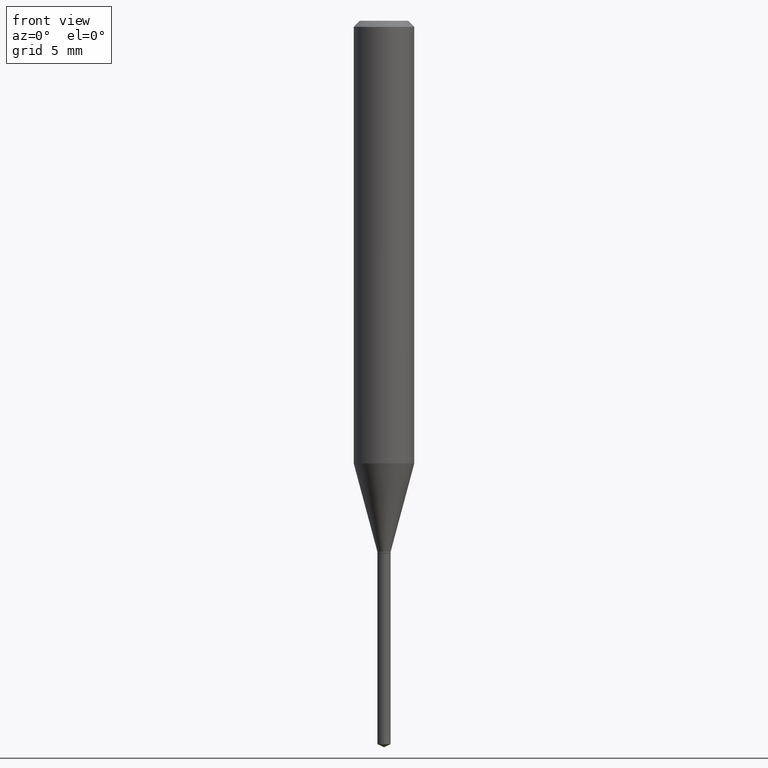
[diagram: clean part render]
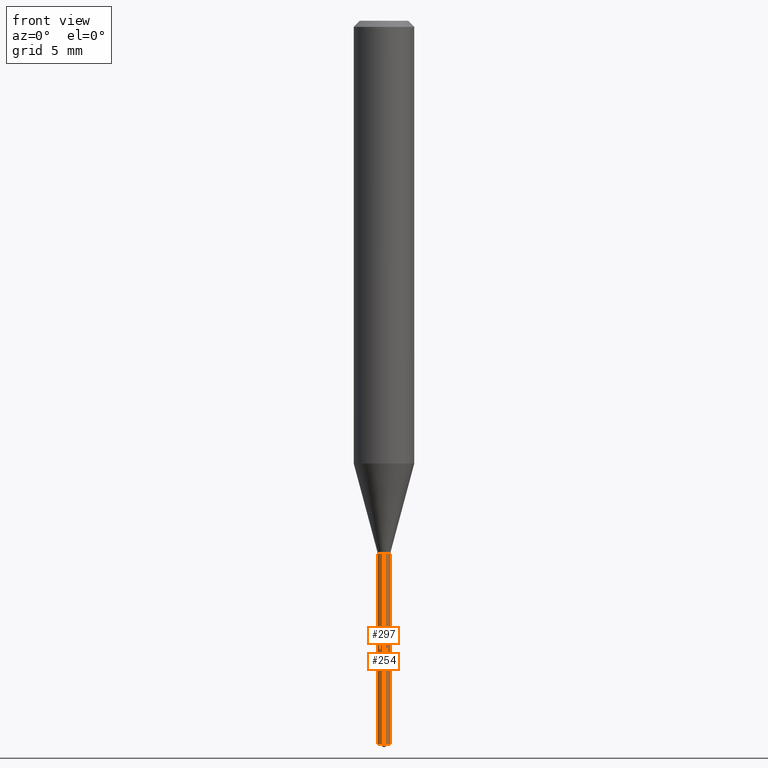
[diagram: same view with one multi-face feature highlighted, each face labeled with its STEP entity id]
A machine part, front view. The highlighted faces form ONE feature: a constant-radius fillet chain: 2 tangent blend faces with common blend radius 0.3505 mm. The faces share edges in the B-rep.
Their STEP definitions:
[1] entity #297 (Cylinder):
#15 = CARTESIAN_POINT ( 'NONE',  ( 2.690015686803650369E-29, -3.840629472727460101E-15, -1.100000000000000089 ) ) ;
#30 = VERTEX_POINT ( 'NONE', #400 ) ;
#85 = CARTESIAN_POINT ( 'NONE',  ( 9.805489753492071922E-17, 0.01379999999999615909, -1.100000000000000089 ) ) ;
#86 = DIRECTION ( 'NONE',  ( -2.445399690415121530E-29, 3.491580316559632610E-15, 1.000000000000000000 ) ) ;
#102 = CIRCLE ( 'NONE', #450, 0.01379999999999999977 ) ;
#112 = CARTESIAN_POINT ( 'NONE',  ( -9.636488495204356536E-17, -0.01380000000000384218, -1.100000000000000089 ) ) ;
#120 = FACE_OUTER_BOUND ( 'NONE', #225, .T. ) ;
#124 = LINE ( 'NONE', #85, #408 ) ;
#129 = DIRECTION ( 'NONE',  ( -6.982962677686265922E-15, -1.000000000000000000, 0.000000000000000000 ) ) ;
#145 = EDGE_CURVE ( 'NONE', #251, #30, #102, .T. ) ;
#146 = VECTOR ( 'NONE', #418, 39.37007874015748143 ) ;
#180 = AXIS2_PLACEMENT_3D ( 'NONE', #361, #86, #321 ) ;
#219 = EDGE_CURVE ( 'NONE', #30, #487, #236, .T. ) ;
#221 = VERTEX_POINT ( 'NONE', #386 ) ;
#225 = EDGE_LOOP ( 'NONE', ( #294, #237, #425, #308 ) ) ;
#235 = AXIS2_PLACEMENT_3D ( 'NONE', #15, #319, #129 ) ;
#236 = LINE ( 'NONE', #112, #146 ) ;
#237 = ORIENTED_EDGE ( 'NONE', *, *, #145, .T. ) ;
#240 = CARTESIAN_POINT ( 'NONE',  ( 3.652439304249811450E-29, -5.214793120509997697E-15, -1.493564954317461169 ) ) ;
#242 = EDGE_CURVE ( 'NONE', #221, #487, #468, .T. ) ;
#251 = VERTEX_POINT ( 'NONE', #286 ) ;
#286 = CARTESIAN_POINT ( 'NONE',  ( 9.805489753493030881E-17, 0.01379999999999478345, -1.493564954317461169 ) ) ;
#294 = ORIENTED_EDGE ( 'NONE', *, *, #314, .F. ) ;
#297 = ADVANCED_FACE ( 'NONE', ( #120 ), #315, .T. ) ;
#308 = ORIENTED_EDGE ( 'NONE', *, *, #242, .F. ) ;
#314 = EDGE_CURVE ( 'NONE', #251, #221, #124, .T. ) ;
#315 = CYLINDRICAL_SURFACE ( 'NONE', #235, 0.01379999999999999977 ) ;
#317 = DIRECTION ( 'NONE',  ( -2.445399690415121810E-29, 3.491580316559632610E-15, 1.000000000000000000 ) ) ;
#319 = DIRECTION ( 'NONE',  ( -2.445399690415121530E-29, 3.491580316559632610E-15, 1.000000000000000000 ) ) ;
#321 = DIRECTION ( 'NONE',  ( -6.982962677686265922E-15, -1.000000000000000000, 0.000000000000000000 ) ) ;
#361 = CARTESIAN_POINT ( 'NONE',  ( 2.690015686803650369E-29, -3.840629472727460101E-15, -1.100000000000000089 ) ) ;
#382 = CARTESIAN_POINT ( 'NONE',  ( -9.636488495204356536E-17, -0.01380000000000384218, -1.100000000000000089 ) ) ;
#383 = DIRECTION ( 'NONE',  ( -2.445399690415121530E-29, 3.491580316559632610E-15, 1.000000000000000000 ) ) ;
#386 = CARTESIAN_POINT ( 'NONE',  ( 9.805489753493040742E-17, 0.01379999999999615909, -1.100000000000000089 ) ) ;
#400 = CARTESIAN_POINT ( 'NONE',  ( -9.636488495203393879E-17, -0.01380000000000521435, -1.493564954317461169 ) ) ;
#408 = VECTOR ( 'NONE', #317, 39.37007874015748143 ) ;
#418 = DIRECTION ( 'NONE',  ( -2.445399690415121810E-29, 3.491580316559632610E-15, 1.000000000000000000 ) ) ;
#425 = ORIENTED_EDGE ( 'NONE', *, *, #219, .T. ) ;
#450 = AXIS2_PLACEMENT_3D ( 'NONE', #240, #383, #456 ) ;
#456 = DIRECTION ( 'NONE',  ( -6.982962677686265922E-15, -1.000000000000000000, 0.000000000000000000 ) ) ;
#468 = CIRCLE ( 'NONE', #180, 0.01379999999999999977 ) ;
#487 = VERTEX_POINT ( 'NONE', #382 ) ;
[2] entity #254 (Cylinder):
#2 = EDGE_LOOP ( 'NONE', ( #470, #480, #7, #56 ) ) ;
#7 = ORIENTED_EDGE ( 'NONE', *, *, #40, .F. ) ;
#16 = DIRECTION ( 'NONE',  ( -2.445399690415121530E-29, 3.491580316559632610E-15, 1.000000000000000000 ) ) ;
#30 = VERTEX_POINT ( 'NONE', #400 ) ;
#40 = EDGE_CURVE ( 'NONE', #487, #221, #107, .T. ) ;
#56 = ORIENTED_EDGE ( 'NONE', *, *, #219, .F. ) ;
#59 = CYLINDRICAL_SURFACE ( 'NONE', #88, 0.01379999999999999977 ) ;
#72 = AXIS2_PLACEMENT_3D ( 'NONE', #248, #16, #261 ) ;
#85 = CARTESIAN_POINT ( 'NONE',  ( 9.805489753492071922E-17, 0.01379999999999615909, -1.100000000000000089 ) ) ;
#88 = AXIS2_PLACEMENT_3D ( 'NONE', #204, #358, #212 ) ;
#107 = CIRCLE ( 'NONE', #72, 0.01379999999999999977 ) ;
#112 = CARTESIAN_POINT ( 'NONE',  ( -9.636488495204356536E-17, -0.01380000000000384218, -1.100000000000000089 ) ) ;
#124 = LINE ( 'NONE', #85, #408 ) ;
#138 = DIRECTION ( 'NONE',  ( -2.445399690415121530E-29, 3.491580316559632610E-15, 1.000000000000000000 ) ) ;
#146 = VECTOR ( 'NONE', #418, 39.37007874015748143 ) ;
#203 = CIRCLE ( 'NONE', #339, 0.01379999999999999977 ) ;
#204 = CARTESIAN_POINT ( 'NONE',  ( 2.690015686803650369E-29, -3.840629472727460101E-15, -1.100000000000000089 ) ) ;
#212 = DIRECTION ( 'NONE',  ( -6.982962677686265922E-15, -1.000000000000000000, 0.000000000000000000 ) ) ;
#219 = EDGE_CURVE ( 'NONE', #30, #487, #236, .T. ) ;
#221 = VERTEX_POINT ( 'NONE', #386 ) ;
#236 = LINE ( 'NONE', #112, #146 ) ;
#248 = CARTESIAN_POINT ( 'NONE',  ( 2.690015686803650369E-29, -3.840629472727460101E-15, -1.100000000000000089 ) ) ;
#251 = VERTEX_POINT ( 'NONE', #286 ) ;
#254 = ADVANCED_FACE ( 'NONE', ( #394 ), #59, .T. ) ;
#261 = DIRECTION ( 'NONE',  ( -6.982962677686265922E-15, -1.000000000000000000, 0.000000000000000000 ) ) ;
#286 = CARTESIAN_POINT ( 'NONE',  ( 9.805489753493030881E-17, 0.01379999999999478345, -1.493564954317461169 ) ) ;
#291 = DIRECTION ( 'NONE',  ( -6.982962677686265922E-15, -1.000000000000000000, 0.000000000000000000 ) ) ;
#293 = CARTESIAN_POINT ( 'NONE',  ( 3.652439304249811450E-29, -5.214793120509997697E-15, -1.493564954317461169 ) ) ;
#314 = EDGE_CURVE ( 'NONE', #251, #221, #124, .T. ) ;
#317 = DIRECTION ( 'NONE',  ( -2.445399690415121810E-29, 3.491580316559632610E-15, 1.000000000000000000 ) ) ;
#339 = AXIS2_PLACEMENT_3D ( 'NONE', #293, #138, #291 ) ;
#358 = DIRECTION ( 'NONE',  ( -2.445399690415121530E-29, 3.491580316559632610E-15, 1.000000000000000000 ) ) ;
#382 = CARTESIAN_POINT ( 'NONE',  ( -9.636488495204356536E-17, -0.01380000000000384218, -1.100000000000000089 ) ) ;
#386 = CARTESIAN_POINT ( 'NONE',  ( 9.805489753493040742E-17, 0.01379999999999615909, -1.100000000000000089 ) ) ;
#394 = FACE_OUTER_BOUND ( 'NONE', #2, .T. ) ;
#400 = CARTESIAN_POINT ( 'NONE',  ( -9.636488495203393879E-17, -0.01380000000000521435, -1.493564954317461169 ) ) ;
#408 = VECTOR ( 'NONE', #317, 39.37007874015748143 ) ;
#418 = DIRECTION ( 'NONE',  ( -2.445399690415121810E-29, 3.491580316559632610E-15, 1.000000000000000000 ) ) ;
#446 = EDGE_CURVE ( 'NONE', #30, #251, #203, .T. ) ;
#470 = ORIENTED_EDGE ( 'NONE', *, *, #446, .T. ) ;
#480 = ORIENTED_EDGE ( 'NONE', *, *, #314, .T. ) ;
#487 = VERTEX_POINT ( 'NONE', #382 ) ;